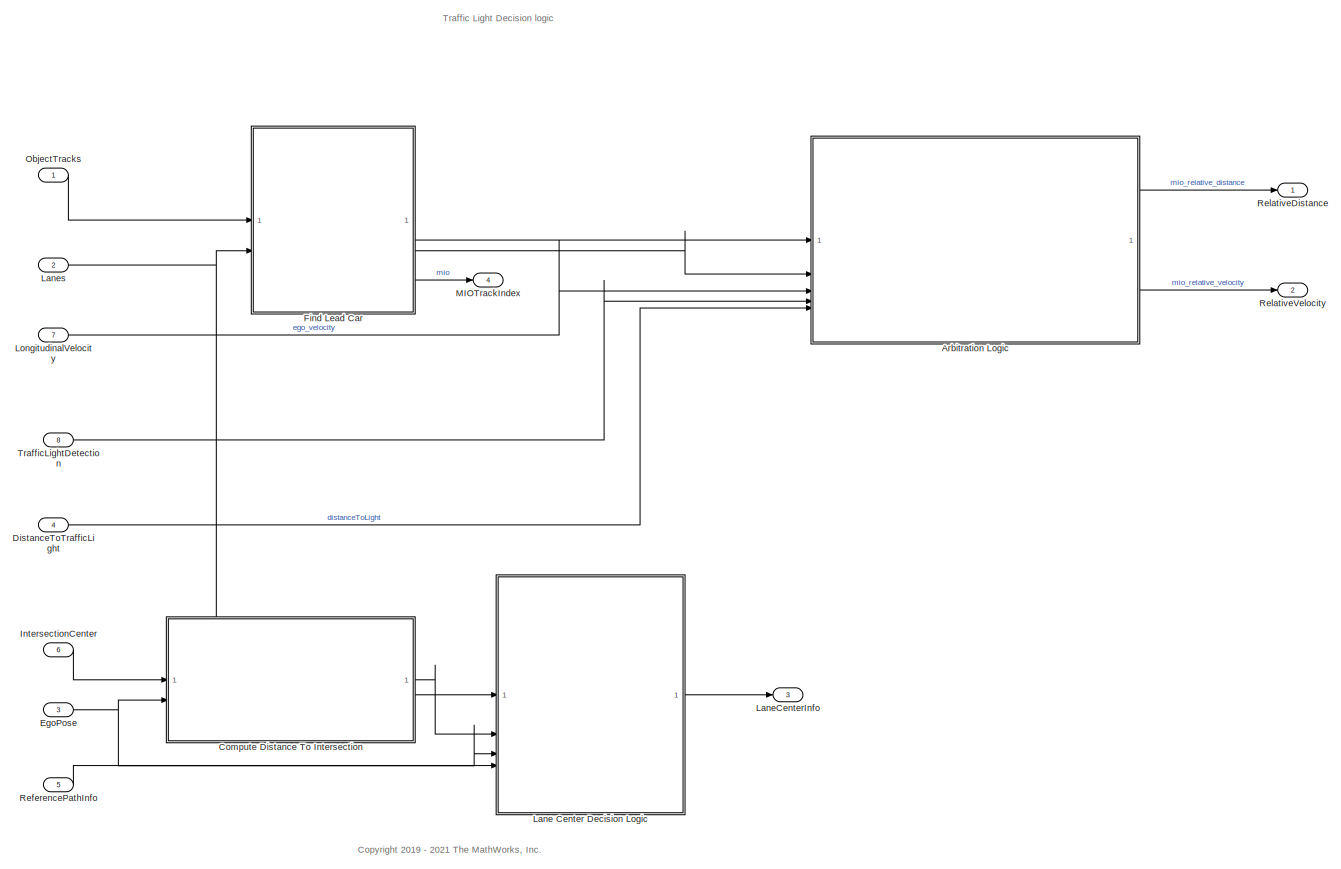
[diagram: root canvas - part 1/1, most of the canvas]
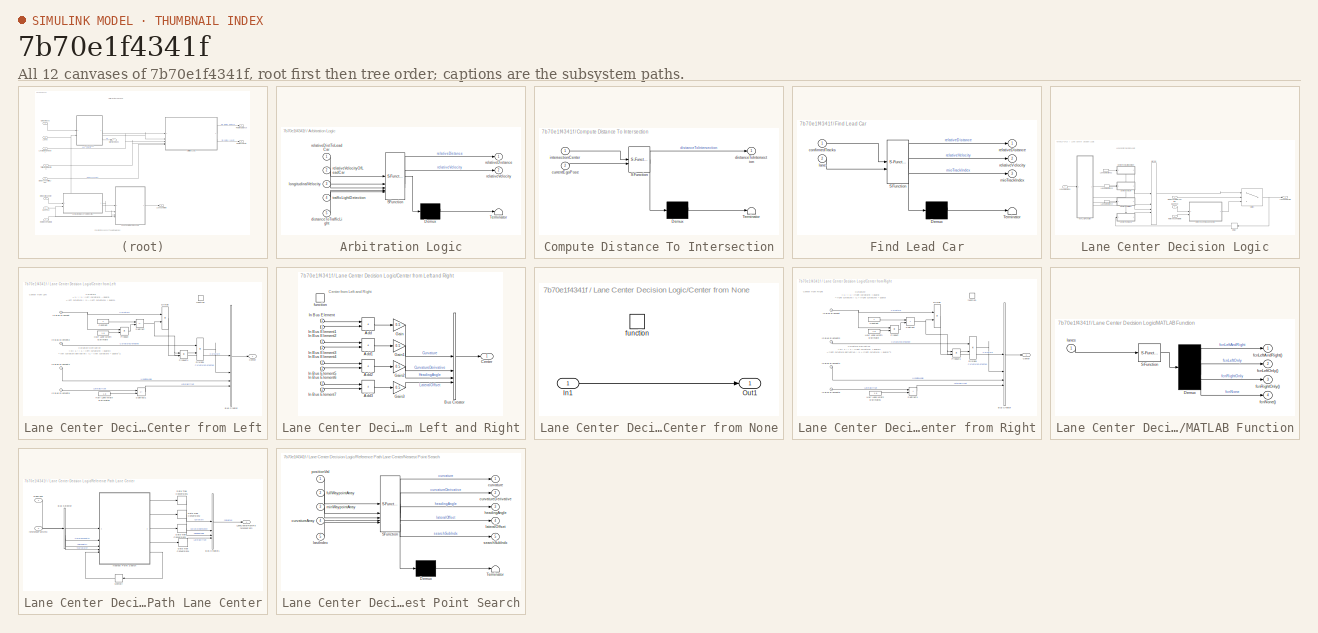
[diagram: thumbnail index - all 12 canvases of the model, root first then tree order]
MODEL slx_7b70e1f4341f
KIND model
CONFIG AbsTol = auto
CONFIG EnableMultiTasking = on
CONFIG FixedStep = 0.001
CONFIG MaxStep = auto
CONFIG MinStep = auto
CONFIG RelTol = 1e-8
CONFIG SampleTimeConstraint = Unconstrained
CONFIG SolverName = ode23tb
CONFIG StartTime = 0.0
CONFIG StopTime = scenario.StopTime
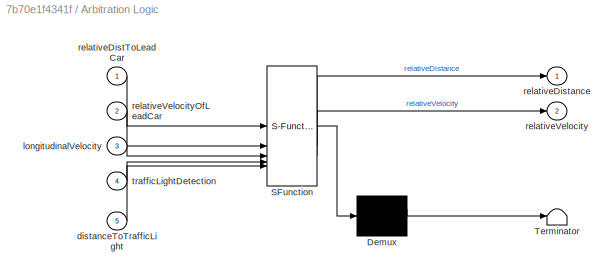
BLOCK [SubSystem] Arbitration Logic
  ErrorFcn = Stateflow.Translate.translate
  PermitHierarchicalResolution = ExplicitOnly
  SFBlockType = Chart
  SystemSampleTime = Ts
  TreatAsAtomicUnit = on
BLOCK [Demux] Arbitration Logic/ Demux 
  Outputs = 1
BLOCK [S-Function] Arbitration Logic/ SFunction 
  EnableBusSupport = off
  FunctionName = sf_sfun
  PortCounts = [5 3]
  SFcnIsStateOwnerBlock = off
  SFunctionDeploymentMode = off
  Tag = Stateflow S-Function 5
BLOCK [Terminator] Arbitration Logic/ Terminator 
BLOCK [Inport] Arbitration Logic/distanceToTrafficLight
  Port = 5
BLOCK [Inport] Arbitration Logic/longitudinalVelocity
  Port = 3
BLOCK [Inport] Arbitration Logic/relativeDistToLeadCar
BLOCK [Outport] Arbitration Logic/relativeDistance
BLOCK [Outport] Arbitration Logic/relativeVelocity
  Port = 2
BLOCK [Inport] Arbitration Logic/relativeVelocityOfLeadCar
  Port = 2
BLOCK [Inport] Arbitration Logic/trafficLightDetection
  Port = 4
BLOCK [SubSystem] Compute Distance To Intersection
  ErrorFcn = Stateflow.Translate.translate
  PermitHierarchicalResolution = ExplicitOnly
  SFBlockType = MATLAB Function
  TreatAsAtomicUnit = on
BLOCK [Demux] Compute Distance To Intersection/ Demux 
  Outputs = 1
BLOCK [S-Function] Compute Distance To Intersection/ SFunction 
  EnableBusSupport = off
  FunctionName = sf_sfun
  PortCounts = [2 2]
  SFcnIsStateOwnerBlock = off
  SFunctionDeploymentMode = off
  Tag = Stateflow S-Function 2
BLOCK [Terminator] Compute Distance To Intersection/ Terminator 
BLOCK [Inport] Compute Distance To Intersection/currentEgoPose
  Port = 2
BLOCK [Outport] Compute Distance To Intersection/distanceToIntersection
BLOCK [Inport] Compute Distance To Intersection/intersectionCenter
BLOCK [Inport] DistanceToTrafficLight
  OutDataTypeStr = double
  Port = 4
  PortDimensions = 1
  SampleTime = [0.10000000000000001,0]
  SamplingMode = Sample based
  SignalType = real
BLOCK [Inport] EgoPose 
  OutDataTypeStr = double
  Port = 3
  PortDimensions = 3
  SampleTime = [0.10000000000000001,0]
  SamplingMode = Sample based
  SignalType = real
BLOCK [SubSystem] Find Lead Car
  ErrorFcn = Stateflow.Translate.translate
  PermitHierarchicalResolution = ExplicitOnly
  SFBlockType = MATLAB Function
  SystemSampleTime = Ts
  TreatAsAtomicUnit = on
BLOCK [Demux] Find Lead Car/ Demux 
  Outputs = 1
BLOCK [S-Function] Find Lead Car/ SFunction 
  EnableBusSupport = off
  FunctionName = sf_sfun
  Parameters = maxDistance,positionSelector,velocitySelector
  PortCounts = [2 4]
  SFcnIsStateOwnerBlock = off
  SFunctionDeploymentMode = off
  Tag = Stateflow S-Function 4
BLOCK [Terminator] Find Lead Car/ Terminator 
BLOCK [Inport] Find Lead Car/confirmedTracks
BLOCK [Inport] Find Lead Car/lane
  Port = 2
BLOCK [Outport] Find Lead Car/mioTrackIndex
  Port = 3
  VectorParamsAs1DForOutWhenUnconnected = off
BLOCK [Outport] Find Lead Car/relativeDistance
  VectorParamsAs1DForOutWhenUnconnected = off
BLOCK [Outport] Find Lead Car/relativeVelocity
  Port = 2
  VectorParamsAs1DForOutWhenUnconnected = off
BLOCK [Inport] IntersectionCenter
  OutDataTypeStr = double
  Port = 6
  PortDimensions = 3
  SampleTime = [0.10000000000000001,0]
  SamplingMode = Sample based
  SignalType = real
BLOCK [SubSystem] Lane Center Decision Logic
  RTWFileNameOpts = Use function name
  RTWSystemCode = Reusable function
  TreatAsAtomicUnit = on
  VariantControl = v2
BLOCK [SubSystem] Lane Center Decision Logic/Center from Left
  TreatAsAtomicUnit = on
BLOCK [SubSystem] Lane Center Decision Logic/Center from Left and Right
  TreatAsAtomicUnit = on
BLOCK [Sum] Lane Center Decision Logic/Center from Left and Right/Add
  IconShape = rectangular
BLOCK [Sum] Lane Center Decision Logic/Center from Left and Right/Add1
  IconShape = rectangular
BLOCK [Sum] Lane Center Decision Logic/Center from Left and Right/Add2
  IconShape = rectangular
BLOCK [Sum] Lane Center Decision Logic/Center from Left and Right/Add3
  IconShape = rectangular
BLOCK [BusCreator] Lane Center Decision Logic/Center from Left and Right/Bus Creator
  DisplayOption = bar
  InheritFromInputs = on
  Inputs = 4
BLOCK [Outport] Lane Center Decision Logic/Center from Left and Right/Center
  VectorParamsAs1DForOutWhenUnconnected = off
BLOCK [Gain] Lane Center Decision Logic/Center from Left and Right/Gain
  Gain = 0.5
BLOCK [Gain] Lane Center Decision Logic/Center from Left and Right/Gain1
  Gain = 0.5
BLOCK [Gain] Lane Center Decision Logic/Center from Left and Right/Gain2
  Gain = 0.5
BLOCK [Gain] Lane Center Decision Logic/Center from Left and Right/Gain3
  Gain = 0.5
BLOCK [Inport] Lane Center Decision Logic/Center from Left and Right/In Bus Element
BLOCK [Inport] Lane Center Decision Logic/Center from Left and Right/In Bus Element1
BLOCK [Inport] Lane Center Decision Logic/Center from Left and Right/In Bus Element2
BLOCK [Inport] Lane Center Decision Logic/Center from Left and Right/In Bus Element3
BLOCK [Inport] Lane Center Decision Logic/Center from Left and Right/In Bus Element4
BLOCK [Inport] Lane Center Decision Logic/Center from Left and Right/In Bus Element5
BLOCK [Inport] Lane Center Decision Logic/Center from Left and Right/In Bus Element6
BLOCK [Inport] Lane Center Decision Logic/Center from Left and Right/In Bus Element7
BLOCK [TriggerPort] Lane Center Decision Logic/Center from Left and Right/function
  StatesWhenEnabling = held
  TriggerType = function-call
  VariantControl = Variant
BLOCK [BusCreator] Lane Center Decision Logic/Center from Left/Bus Creator
  DisplayOption = bar
  InheritFromInputs = on
  Inputs = 4
BLOCK [Outport] Lane Center Decision Logic/Center from Left/Center
  VectorParamsAs1DForOutWhenUnconnected = off
BLOCK [Constant] Lane Center Decision Logic/Center from Left/Constant
  OutDataTypeStr = Inherit: Inherit via back propagation
BLOCK [Product] Lane Center Decision Logic/Center from Left/Divide
  Inputs = */
BLOCK [Product] Lane Center Decision Logic/Center from Left/Divide1
  Inputs = */
BLOCK [Constant] Lane Center Decision Logic/Center from Left/Half Lane Width Estimate
  OutDataTypeStr = Inherit: Inherit via back propagation
  Value = 1.8
BLOCK [Constant] Lane Center Decision Logic/Center from Left/Half Lane Width Estimate1
  OutDataTypeStr = Inherit: Inherit via back propagation
  Value = 1.8
BLOCK [Inport] Lane Center Decision Logic/Center from Left/In Bus Element
BLOCK [Inport] Lane Center Decision Logic/Center from Left/In Bus Element2
BLOCK [Inport] Lane Center Decision Logic/Center from Left/In Bus Element4
BLOCK [Inport] Lane Center Decision Logic/Center from Left/In Bus Element6
BLOCK [Product] Lane Center Decision Logic/Center from Left/Product
BLOCK [Product] Lane Center Decision Logic/Center from Left/Product1
BLOCK [Sum] Lane Center Decision Logic/Center from Left/Subtract
  IconShape = rectangular
  Inputs = +-
BLOCK [Sum] Lane Center Decision Logic/Center from Left/Subtract1
  IconShape = rectangular
  Inputs = +-
BLOCK [TriggerPort] Lane Center Decision Logic/Center from Left/function
  StatesWhenEnabling = held
  TriggerType = function-call
  VariantControl = Variant
BLOCK [SubSystem] Lane Center Decision Logic/Center from None
  TreatAsAtomicUnit = on
BLOCK [Inport] Lane Center Decision Logic/Center from None/In1
BLOCK [Outport] Lane Center Decision Logic/Center from None/Out1
  VectorParamsAs1DForOutWhenUnconnected = off
BLOCK [TriggerPort] Lane Center Decision Logic/Center from None/function
  StatesWhenEnabling = held
  TriggerType = function-call
  VariantControl = Variant
BLOCK [SubSystem] Lane Center Decision Logic/Center from Right
  TreatAsAtomicUnit = on
BLOCK [BusCreator] Lane Center Decision Logic/Center from Right/Bus Creator
  DisplayOption = bar
  InheritFromInputs = on
  Inputs = 4
BLOCK [Outport] Lane Center Decision Logic/Center from Right/Center
  VectorParamsAs1DForOutWhenUnconnected = off
BLOCK [Constant] Lane Center Decision Logic/Center from Right/Constant
  OutDataTypeStr = Inherit: Inherit via back propagation
BLOCK [Product] Lane Center Decision Logic/Center from Right/Divide
  Inputs = */
BLOCK [Product] Lane Center Decision Logic/Center from Right/Divide1
  Inputs = */
BLOCK [Constant] Lane Center Decision Logic/Center from Right/Half Lane Width Estimate
  OutDataTypeStr = Inherit: Inherit via back propagation
  Value = 1.8
BLOCK [Constant] Lane Center Decision Logic/Center from Right/Half Lane Width Estimate1
  OutDataTypeStr = Inherit: Inherit via back propagation
  Value = 1.8
BLOCK [Inport] Lane Center Decision Logic/Center from Right/In Bus Element
BLOCK [Inport] Lane Center Decision Logic/Center from Right/In Bus Element2
BLOCK [Inport] Lane Center Decision Logic/Center from Right/In Bus Element4
BLOCK [Inport] Lane Center Decision Logic/Center from Right/In Bus Element6
BLOCK [Product] Lane Center Decision Logic/Center from Right/Product
BLOCK [Product] Lane Center Decision Logic/Center from Right/Product1
BLOCK [Sum] Lane Center Decision Logic/Center from Right/Subtract
  IconShape = rectangular
BLOCK [Sum] Lane Center Decision Logic/Center from Right/Subtract1
  IconShape = rectangular
BLOCK [TriggerPort] Lane Center Decision Logic/Center from Right/function
  StatesWhenEnabling = held
  TriggerType = function-call
  VariantControl = Variant
BLOCK [Delay] Lane Center Decision Logic/Delay
  DelayLength = 1
  InputPortMap = u0
BLOCK [Inport] Lane Center Decision Logic/DistanceToIntersection
  Port = 2
BLOCK [Inport] Lane Center Decision Logic/EgoPose
  Port = 3
BLOCK [Inport] Lane Center Decision Logic/Lane Detections
BLOCK [InportShadow] Lane Center Decision Logic/Lane Detections2
BLOCK [InportShadow] Lane Center Decision Logic/Lane Detections3
BLOCK [InportShadow] Lane Center Decision Logic/Lane Detections4
BLOCK [Outport] Lane Center Decision Logic/LaneCenterInfo
  VectorParamsAs1DForOutWhenUnconnected = off
BLOCK [SubSystem] Lane Center Decision Logic/MATLAB Function
  ErrorFcn = Stateflow.Translate.translate
  PermitHierarchicalResolution = ExplicitOnly
  SFBlockType = MATLAB Function
  TreatAsAtomicUnit = on
BLOCK [Demux] Lane Center Decision Logic/MATLAB Function/ Demux 
BLOCK [S-Function] Lane Center Decision Logic/MATLAB Function/ SFunction 
  EnableBusSupport = off
  FunctionName = sf_sfun
  PortCounts = [1 1]
  SFcnIsStateOwnerBlock = off
  SFunctionDeploymentMode = off
  Tag = Stateflow S-Function 6
BLOCK [Outport] Lane Center Decision Logic/MATLAB Function/fcnLeftAndRight()
  VectorParamsAs1DForOutWhenUnconnected = off
BLOCK [Outport] Lane Center Decision Logic/MATLAB Function/fcnLeftOnly()
  Port = 2
  VectorParamsAs1DForOutWhenUnconnected = off
BLOCK [Outport] Lane Center Decision Logic/MATLAB Function/fcnNone()
  Port = 4
  VectorParamsAs1DForOutWhenUnconnected = off
BLOCK [Outport] Lane Center Decision Logic/MATLAB Function/fcnRightOnly()
  Port = 3
  VectorParamsAs1DForOutWhenUnconnected = off
BLOCK [Inport] Lane Center Decision Logic/MATLAB Function/lanes
BLOCK [Merge] Lane Center Decision Logic/Merge
  Inputs = 4
BLOCK [SubSystem] Lane Center Decision Logic/Reference Path Lane Center
BLOCK [BusCreator] Lane Center Decision Logic/Reference Path Lane Center/Bus Creator1
  DisplayOption = bar
  InheritFromInputs = on
  Inputs = 4
BLOCK [BusSelector] Lane Center Decision Logic/Reference Path Lane Center/Bus Selector
  OutputSignals = referencePath,waypoints,curvature
BLOCK [DataTypeConversion] Lane Center Decision Logic/Reference Path Lane Center/Data Type Conversion1
  OutDataTypeStr = single
  RndMeth = Floor
  SaturateOnIntegerOverflow = off
BLOCK [DataTypeConversion] Lane Center Decision Logic/Reference Path Lane Center/Data Type Conversion2
  OutDataTypeStr = single
  RndMeth = Floor
  SaturateOnIntegerOverflow = off
BLOCK [DataTypeConversion] Lane Center Decision Logic/Reference Path Lane Center/Data Type Conversion3
  OutDataTypeStr = single
  RndMeth = Floor
  SaturateOnIntegerOverflow = off
BLOCK [DataTypeConversion] Lane Center Decision Logic/Reference Path Lane Center/Data Type Conversion4
  OutDataTypeStr = single
  RndMeth = Floor
  SaturateOnIntegerOverflow = off
BLOCK [Inport] Lane Center Decision Logic/Reference Path Lane Center/EgoPose 
BLOCK [Outport] Lane Center Decision Logic/Reference Path Lane Center/LaneCenterFromReferencePath
BLOCK [Memory] Lane Center Decision Logic/Reference Path Lane Center/Memory
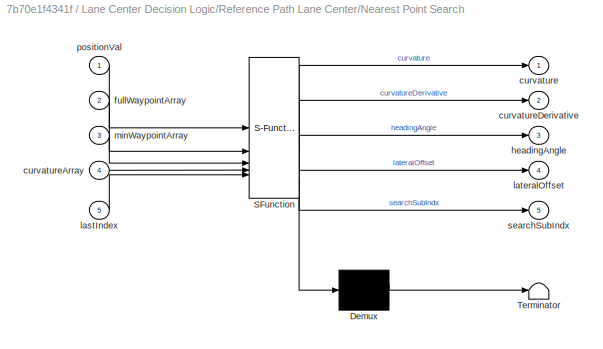
BLOCK [SubSystem] Lane Center Decision Logic/Reference Path Lane Center/Nearest Point Search
  ErrorFcn = Stateflow.Translate.translate
  PermitHierarchicalResolution = ExplicitOnly
  SFBlockType = MATLAB Function
  SystemSampleTime = Ts
  TreatAsAtomicUnit = on
BLOCK [Demux] Lane Center Decision Logic/Reference Path Lane Center/Nearest Point Search/ Demux 
  Outputs = 1
BLOCK [S-Function] Lane Center Decision Logic/Reference Path Lane Center/Nearest Point Search/ SFunction 
  EnableBusSupport = off
  FunctionName = sf_sfun
  PortCounts = [5 6]
  SFcnIsStateOwnerBlock = off
  SFunctionDeploymentMode = off
  Tag = Stateflow S-Function 9
BLOCK [Terminator] Lane Center Decision Logic/Reference Path Lane Center/Nearest Point Search/ Terminator 
BLOCK [Outport] Lane Center Decision Logic/Reference Path Lane Center/Nearest Point Search/curvature
  VectorParamsAs1DForOutWhenUnconnected = off
BLOCK [Inport] Lane Center Decision Logic/Reference Path Lane Center/Nearest Point Search/curvatureArray
  Port = 4
BLOCK [Outport] Lane Center Decision Logic/Reference Path Lane Center/Nearest Point Search/curvatureDerivative
  Port = 2
  VectorParamsAs1DForOutWhenUnconnected = off
BLOCK [Inport] Lane Center Decision Logic/Reference Path Lane Center/Nearest Point Search/fullWaypointArray
  Port = 2
BLOCK [Outport] Lane Center Decision Logic/Reference Path Lane Center/Nearest Point Search/headingAngle
  Port = 3
  VectorParamsAs1DForOutWhenUnconnected = off
BLOCK [Inport] Lane Center Decision Logic/Reference Path Lane Center/Nearest Point Search/lastIndex
  Port = 5
BLOCK [Outport] Lane Center Decision Logic/Reference Path Lane Center/Nearest Point Search/lateralOffset
  Port = 4
  VectorParamsAs1DForOutWhenUnconnected = off
BLOCK [Inport] Lane Center Decision Logic/Reference Path Lane Center/Nearest Point Search/minWaypointArray
  Port = 3
BLOCK [Inport] Lane Center Decision Logic/Reference Path Lane Center/Nearest Point Search/positionVal
BLOCK [Outport] Lane Center Decision Logic/Reference Path Lane Center/Nearest Point Search/searchSubIndx
  Port = 5
BLOCK [Inport] Lane Center Decision Logic/Reference Path Lane Center/referencePathInfo
  Port = 2
BLOCK [Inport] Lane Center Decision Logic/ReferencePathInfo
  Port = 4
BLOCK [Switch] Lane Center Decision Logic/Switch
  AttributesFormatString = ----------------------------------------\nThreshold = %<Threshold>
  Criteria = u2 > Threshold
  InputSameDT = off
  SaturateOnIntegerOverflow = off
  Threshold = referencePathSwitchThreshold
BLOCK [Outport] LaneCenterInfo
  OutDataTypeStr = Bus: BusLaneCenter
  Port = 3
BLOCK [Inport] Lanes
  OutDataTypeStr = Bus: LaneSensor
  Port = 2
BLOCK [Inport] LongitudinalVelocity
  OutDataTypeStr = double
  Port = 7
  PortDimensions = 1
  SampleTime = [0.10000000000000001,0]
  SamplingMode = Sample based
  SignalType = real
BLOCK [Outport] MIOTrackIndex
  Port = 4
BLOCK [Inport] ObjectTracks
  BusOutputAsStruct = on
  OutDataTypeStr = Bus: BusMultiObjectTracker1
  PortDimensions = [1 1]
  SampleTime = [0.10000000000000001,0]
BLOCK [Inport] ReferencePathInfo 
  BusOutputAsStruct = on
  OutDataTypeStr = Bus: ReferencePathInfo
  Port = 5
  PortDimensions = 1
  SampleTime = [0.10000000000000001,0]
BLOCK [Outport] RelativeDistance
  OutDataTypeStr = double
  PortDimensions = 1
  SampleTime = [0.10000000000000001,0]
  SamplingMode = Sample based
  SignalType = real
  VectorParamsAs1DForOutWhenUnconnected = off
BLOCK [Outport] RelativeVelocity
  OutDataTypeStr = double
  Port = 2
  PortDimensions = 1
  SampleTime = [0.10000000000000001,0]
  SamplingMode = Sample based
  SignalType = real
  VectorParamsAs1DForOutWhenUnconnected = off
BLOCK [Inport] TrafficLightDetection
  Port = 8
ANNOTATION (root): <copyright redacted>
ANNOTATION (root): Traffic Light Decision logic
ANNOTATION Lane Center Decision Logic: Lane Center Decision Logic
ANNOTATION Lane Center Decision Logic/Center from Left: Center from Left
ANNOTATION Lane Center Decision Logic/Center from Left: Curvature = 1 / ( 1 / (left curvature) – guard) = left curvature / (1 – (left curvature) * guard).
ANNOTATION Lane Center Decision Logic/Center from Left: Curvature Derivative = D[ 1 / ( 1 / (left curvature) – guard)] = left curvature derivative / (1 – (left curvature) * guard)^2.
ANNOTATION Lane Center Decision Logic/Center from Left and Right: Center from Left and Right
ANNOTATION Lane Center Decision Logic/Center from Right: Center from Right
ANNOTATION Lane Center Decision Logic/Center from Right: Curvature = 1 / ( 1 / (right curvature) + guard) = right curvature / (1 + (right curvature) * guard)
ANNOTATION Lane Center Decision Logic/Center from Right: Curvature Derivative = D[ 1 / ( 1 / (right curvature) + guard)] = right curvature derivative / (1 + (right curvature) * guard)^2
LINE Arbitration Logic:1 -> RelativeDistance:1
LINE Arbitration Logic:2 -> RelativeVelocity:1
LINE Compute Distance To Intersection:1 -> Lane Center Decision Logic:2
LINE DistanceToTrafficLight:1 -> Arbitration Logic:5
NET EgoPose :1 -> Compute Distance To Intersection:2, Lane Center Decision Logic:3
LINE Find Lead Car:1 -> Arbitration Logic:1
LINE Find Lead Car:2 -> Arbitration Logic:2
LINE Find Lead Car:3 -> MIOTrackIndex:1
LINE IntersectionCenter:1 -> Compute Distance To Intersection:1
LINE Lane Center Decision Logic/Center from Left and Right/Add1:1 -> Lane Center Decision Logic/Center from Left and Right/Gain1:1
LINE Lane Center Decision Logic/Center from Left and Right/Add2:1 -> Lane Center Decision Logic/Center from Left and Right/Gain2:1
LINE Lane Center Decision Logic/Center from Left and Right/Add3:1 -> Lane Center Decision Logic/Center from Left and Right/Gain3:1
LINE Lane Center Decision Logic/Center from Left and Right/Add:1 -> Lane Center Decision Logic/Center from Left and Right/Gain:1
LINE Lane Center Decision Logic/Center from Left and Right/Bus Creator:1 -> Lane Center Decision Logic/Center from Left and Right/Center:1
LINE Lane Center Decision Logic/Center from Left and Right/Gain1:1 -> Lane Center Decision Logic/Center from Left and Right/Bus Creator:2
LINE Lane Center Decision Logic/Center from Left and Right/Gain2:1 -> Lane Center Decision Logic/Center from Left and Right/Bus Creator:3
LINE Lane Center Decision Logic/Center from Left and Right/Gain3:1 -> Lane Center Decision Logic/Center from Left and Right/Bus Creator:4
LINE Lane Center Decision Logic/Center from Left and Right/Gain:1 -> Lane Center Decision Logic/Center from Left and Right/Bus Creator:1
LINE Lane Center Decision Logic/Center from Left and Right/In Bus Element1:1 -> Lane Center Decision Logic/Center from Left and Right/Add:2
LINE Lane Center Decision Logic/Center from Left and Right/In Bus Element2:1 -> Lane Center Decision Logic/Center from Left and Right/Add1:1
LINE Lane Center Decision Logic/Center from Left and Right/In Bus Element3:1 -> Lane Center Decision Logic/Center from Left and Right/Add1:2
LINE Lane Center Decision Logic/Center from Left and Right/In Bus Element4:1 -> Lane Center Decision Logic/Center from Left and Right/Add2:1
LINE Lane Center Decision Logic/Center from Left and Right/In Bus Element5:1 -> Lane Center Decision Logic/Center from Left and Right/Add2:2
LINE Lane Center Decision Logic/Center from Left and Right/In Bus Element6:1 -> Lane Center Decision Logic/Center from Left and Right/Add3:1
LINE Lane Center Decision Logic/Center from Left and Right/In Bus Element7:1 -> Lane Center Decision Logic/Center from Left and Right/Add3:2
LINE Lane Center Decision Logic/Center from Left and Right/In Bus Element:1 -> Lane Center Decision Logic/Center from Left and Right/Add:1
LINE Lane Center Decision Logic/Center from Left and Right:1 -> Lane Center Decision Logic/Merge:1
LINE Lane Center Decision Logic/Center from Left/Bus Creator:1 -> Lane Center Decision Logic/Center from Left/Center:1
LINE Lane Center Decision Logic/Center from Left/Constant:1 -> Lane Center Decision Logic/Center from Left/Subtract:1
LINE Lane Center Decision Logic/Center from Left/Divide1:1 -> Lane Center Decision Logic/Center from Left/Bus Creator:2
LINE Lane Center Decision Logic/Center from Left/Divide:1 -> Lane Center Decision Logic/Center from Left/Bus Creator:1
LINE Lane Center Decision Logic/Center from Left/Half Lane Width Estimate1:1 -> Lane Center Decision Logic/Center from Left/Subtract1:2
LINE Lane Center Decision Logic/Center from Left/Half Lane Width Estimate:1 -> Lane Center Decision Logic/Center from Left/Product:2
LINE Lane Center Decision Logic/Center from Left/In Bus Element2:1 -> Lane Center Decision Logic/Center from Left/Divide1:1
LINE Lane Center Decision Logic/Center from Left/In Bus Element4:1 -> Lane Center Decision Logic/Center from Left/Bus Creator:3
LINE Lane Center Decision Logic/Center from Left/In Bus Element6:1 -> Lane Center Decision Logic/Center from Left/Subtract1:1
NET Lane Center Decision Logic/Center from Left/In Bus Element:1 -> Lane Center Decision Logic/Center from Left/Divide:1, Lane Center Decision Logic/Center from Left/Product:1
LINE Lane Center Decision Logic/Center from Left/Product1:1 -> Lane Center Decision Logic/Center from Left/Divide1:2
LINE Lane Center Decision Logic/Center from Left/Product:1 -> Lane Center Decision Logic/Center from Left/Subtract:2
LINE Lane Center Decision Logic/Center from Left/Subtract1:1 -> Lane Center Decision Logic/Center from Left/Bus Creator:4
NET Lane Center Decision Logic/Center from Left/Subtract:1 -> Lane Center Decision Logic/Center from Left/Divide:2, Lane Center Decision Logic/Center from Left/Product1:1, Lane Center Decision Logic/Center from Left/Product1:2
LINE Lane Center Decision Logic/Center from Left:1 -> Lane Center Decision Logic/Merge:2
LINE Lane Center Decision Logic/Center from None/In1:1 -> Lane Center Decision Logic/Center from None/Out1:1
LINE Lane Center Decision Logic/Center from None:1 -> Lane Center Decision Logic/Merge:4
LINE Lane Center Decision Logic/Center from Right/Bus Creator:1 -> Lane Center Decision Logic/Center from Right/Center:1
LINE Lane Center Decision Logic/Center from Right/Constant:1 -> Lane Center Decision Logic/Center from Right/Subtract:1
LINE Lane Center Decision Logic/Center from Right/Divide1:1 -> Lane Center Decision Logic/Center from Right/Bus Creator:2
LINE Lane Center Decision Logic/Center from Right/Divide:1 -> Lane Center Decision Logic/Center from Right/Bus Creator:1
LINE Lane Center Decision Logic/Center from Right/Half Lane Width Estimate1:1 -> Lane Center Decision Logic/Center from Right/Subtract1:2
LINE Lane Center Decision Logic/Center from Right/Half Lane Width Estimate:1 -> Lane Center Decision Logic/Center from Right/Product:2
LINE Lane Center Decision Logic/Center from Right/In Bus Element2:1 -> Lane Center Decision Logic/Center from Right/Divide1:1
LINE Lane Center Decision Logic/Center from Right/In Bus Element4:1 -> Lane Center Decision Logic/Center from Right/Bus Creator:3
LINE Lane Center Decision Logic/Center from Right/In Bus Element6:1 -> Lane Center Decision Logic/Center from Right/Subtract1:1
NET Lane Center Decision Logic/Center from Right/In Bus Element:1 -> Lane Center Decision Logic/Center from Right/Divide:1, Lane Center Decision Logic/Center from Right/Product:1
LINE Lane Center Decision Logic/Center from Right/Product1:1 -> Lane Center Decision Logic/Center from Right/Divide1:2
LINE Lane Center Decision Logic/Center from Right/Product:1 -> Lane Center Decision Logic/Center from Right/Subtract:2
LINE Lane Center Decision Logic/Center from Right/Subtract1:1 -> Lane Center Decision Logic/Center from Right/Bus Creator:4
NET Lane Center Decision Logic/Center from Right/Subtract:1 -> Lane Center Decision Logic/Center from Right/Divide:2, Lane Center Decision Logic/Center from Right/Product1:1, Lane Center Decision Logic/Center from Right/Product1:2
LINE Lane Center Decision Logic/Center from Right:1 -> Lane Center Decision Logic/Merge:3
LINE Lane Center Decision Logic/Delay:1 -> Lane Center Decision Logic/Center from None:1
LINE Lane Center Decision Logic/DistanceToIntersection:1 -> Lane Center Decision Logic/Switch:2
LINE Lane Center Decision Logic/EgoPose:1 -> Lane Center Decision Logic/Reference Path Lane Center:1
LINE Lane Center Decision Logic/Lane Detections2:1 -> Lane Center Decision Logic/Center from Left and Right:1
LINE Lane Center Decision Logic/Lane Detections3:1 -> Lane Center Decision Logic/Center from Left:1
LINE Lane Center Decision Logic/Lane Detections4:1 -> Lane Center Decision Logic/Center from Right:1
LINE Lane Center Decision Logic/Lane Detections:1 -> Lane Center Decision Logic/MATLAB Function:1
LINE Lane Center Decision Logic/MATLAB Function:1 -> Lane Center Decision Logic/Center from Left and Right:trigger
LINE Lane Center Decision Logic/MATLAB Function:2 -> Lane Center Decision Logic/Center from Left:trigger
LINE Lane Center Decision Logic/MATLAB Function:3 -> Lane Center Decision Logic/Center from Right:trigger
LINE Lane Center Decision Logic/MATLAB Function:4 -> Lane Center Decision Logic/Center from None:trigger
LINE Lane Center Decision Logic/Merge:1 -> Lane Center Decision Logic/Switch:1
LINE Lane Center Decision Logic/Reference Path Lane Center/Bus Creator1:1 -> Lane Center Decision Logic/Reference Path Lane Center/LaneCenterFromReferencePath:1
LINE Lane Center Decision Logic/Reference Path Lane Center/Bus Selector:1 -> Lane Center Decision Logic/Reference Path Lane Center/Nearest Point Search:2
LINE Lane Center Decision Logic/Reference Path Lane Center/Bus Selector:2 -> Lane Center Decision Logic/Reference Path Lane Center/Nearest Point Search:3
LINE Lane Center Decision Logic/Reference Path Lane Center/Bus Selector:3 -> Lane Center Decision Logic/Reference Path Lane Center/Nearest Point Search:4
LINE Lane Center Decision Logic/Reference Path Lane Center/Data Type Conversion1:1 -> Lane Center Decision Logic/Reference Path Lane Center/Bus Creator1:1
LINE Lane Center Decision Logic/Reference Path Lane Center/Data Type Conversion2:1 -> Lane Center Decision Logic/Reference Path Lane Center/Bus Creator1:2
LINE Lane Center Decision Logic/Reference Path Lane Center/Data Type Conversion3:1 -> Lane Center Decision Logic/Reference Path Lane Center/Bus Creator1:3
LINE Lane Center Decision Logic/Reference Path Lane Center/Data Type Conversion4:1 -> Lane Center Decision Logic/Reference Path Lane Center/Bus Creator1:4
LINE Lane Center Decision Logic/Reference Path Lane Center/EgoPose :1 -> Lane Center Decision Logic/Reference Path Lane Center/Nearest Point Search:1
LINE Lane Center Decision Logic/Reference Path Lane Center/Memory:1 -> Lane Center Decision Logic/Reference Path Lane Center/Nearest Point Search:5
LINE Lane Center Decision Logic/Reference Path Lane Center/Nearest Point Search:1 -> Lane Center Decision Logic/Reference Path Lane Center/Data Type Conversion1:1
LINE Lane Center Decision Logic/Reference Path Lane Center/Nearest Point Search:2 -> Lane Center Decision Logic/Reference Path Lane Center/Data Type Conversion2:1
LINE Lane Center Decision Logic/Reference Path Lane Center/Nearest Point Search:3 -> Lane Center Decision Logic/Reference Path Lane Center/Data Type Conversion3:1
LINE Lane Center Decision Logic/Reference Path Lane Center/Nearest Point Search:4 -> Lane Center Decision Logic/Reference Path Lane Center/Data Type Conversion4:1
LINE Lane Center Decision Logic/Reference Path Lane Center/Nearest Point Search:5 -> Lane Center Decision Logic/Reference Path Lane Center/Memory:1
LINE Lane Center Decision Logic/Reference Path Lane Center/referencePathInfo:1 -> Lane Center Decision Logic/Reference Path Lane Center/Bus Selector:1
LINE Lane Center Decision Logic/Reference Path Lane Center:1 -> Lane Center Decision Logic/Switch:3
LINE Lane Center Decision Logic/ReferencePathInfo:1 -> Lane Center Decision Logic/Reference Path Lane Center:2
NET Lane Center Decision Logic/Switch:1 -> Lane Center Decision Logic/Delay:1, Lane Center Decision Logic/LaneCenterInfo:1
LINE Lane Center Decision Logic:1 -> LaneCenterInfo:1
NET Lanes:1 -> Find Lead Car:2, Lane Center Decision Logic:1
LINE LongitudinalVelocity:1 -> Arbitration Logic:3
LINE ObjectTracks:1 -> Find Lead Car:1
LINE ReferencePathInfo :1 -> Lane Center Decision Logic:4
LINE TrafficLightDetection:1 -> Arbitration Logic:4
note: NET lines group one-source signal fan-out (src -> all destinations, sorted); 1:1 wires keep LINE
CHART Arbitration Logic states=2 transitions=6
  STATE_LABEL 'OnEntry\nentry:\nrelativeDistance = relativeDistToLeadCar;\nrelativeVelocity = relativeVelocityOfLeadCar;\n'
  STATE_LABEL 'OnRedAndYellowLightDetection\nentry:\nrelativeDistance = min(relativeDistToLeadCar,distanceToTrafficLight);\nrelativeVelocity = min(relativeVelocityOfLeadCar,longitudinalVelocity);\n'
CHART Lane Center Decision Logic/MATLAB Function states=1 transitions=1
  STATE_LABEL 'eML_blk_kernel()'
  STATE_LABEL 'SCRIPT:\nfunction fcn(lanes)\n\nleftStrength  = lanes.Left.Strength;\nrightStrength = lanes.Right.Strength;\n\nif (leftStrength > 0) && (rightStrength > 0)\n   fcnLeftAndRight();\n   \nelseif leftStrength > 0\n    fcnLeftOnly();\n    \nelseif rightStrength > 0\n    fcnRightOnly();\n    \nelse\n    fcnNone();\nend'
CHART Lane Center Decision Logic/Reference Path Lane Center/Nearest Point Search states=1 transitions=1
  STATE_LABEL 'eML_blk_kernel()'
  STATE_LABEL 'SCRIPT:\nfunction [curvature, curvatureDerivative, headingAngle, lateralOffset, searchSubIndx] = nearestPointSearch(positionVal, fullWaypointArray, minWaypointArray,  curvatureArray, lastIndex)\n% curvature = initial curvature per unit length                  [1/m]\n% curvatureDerivative = (constant) derivative of curvature per unit length [1/m^2]\n% headingAngle = Relative heading angle of vehicle wr...<+3608ch>'
CHART Compute Distance To Intersection states=1 transitions=1
  STATE_LABEL 'eML_blk_kernel()'
  STATE_LABEL 'SCRIPT:\nfunction distanceToIntersection = computeDistanceToIntersection(intersectionCenter, currentEgoPose)\n\ndistanceToIntersection = double(sqrt((intersectionCenter(1)- ...\n    currentEgoPose(1))^2 + (intersectionCenter(2)- currentEgoPose(2))^2));\n\nend'
CHART Find Lead Car states=1 transitions=1
  STATE_LABEL 'eML_blk_kernel()'
  STATE_LABEL "SCRIPT:\nfunction [relativeDistance,relativeVelocity,mioTrackIndex] = findLeadCar(confirmedTracks, lane, positionSelector, maxDistance, velocitySelector)\n% This function finds the lead car: a car in front of the ego car that\n% satisfies all the criteria below:\n% * Within the ego car's lane.\n% * In front of the ego car.\n% * Closest to the ego car.\n\n% Note: If you change state definition, change the ...<+255ch>"
CHART  states=0 transitions=0
CHART  states=0 transitions=0
CHART  states=0 transitions=0
CHART  states=0 transitions=0
CHART  states=0 transitions=0
